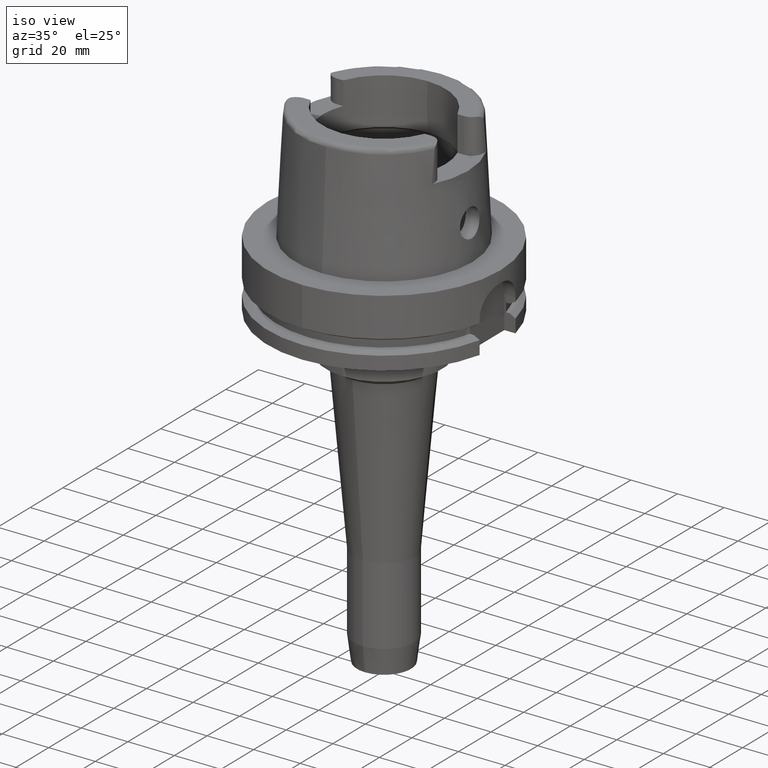
[diagram: clean part render]
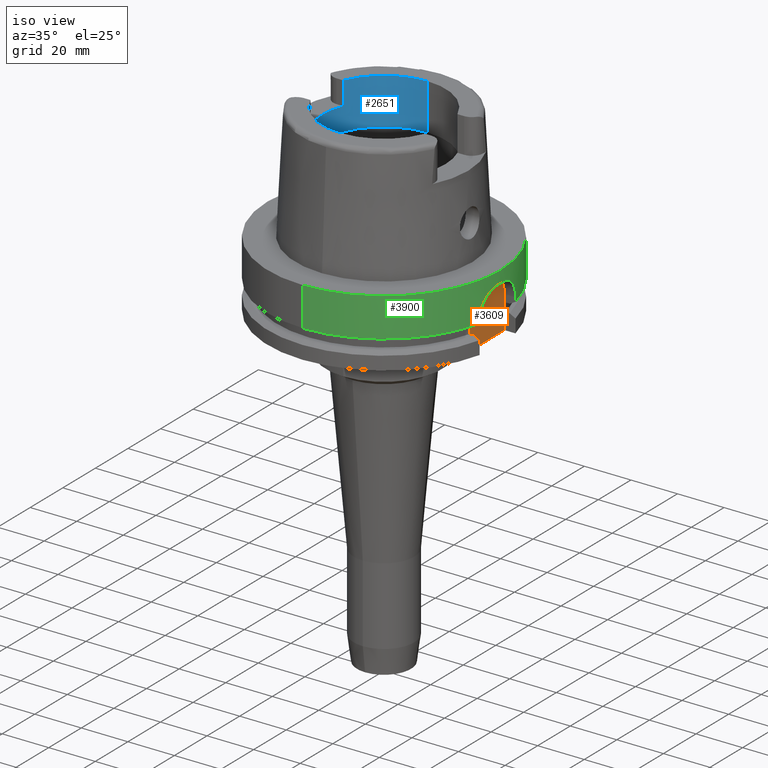
[diagram: same view with three faces highlighted in distinct colors, each labeled with its STEP entity id]
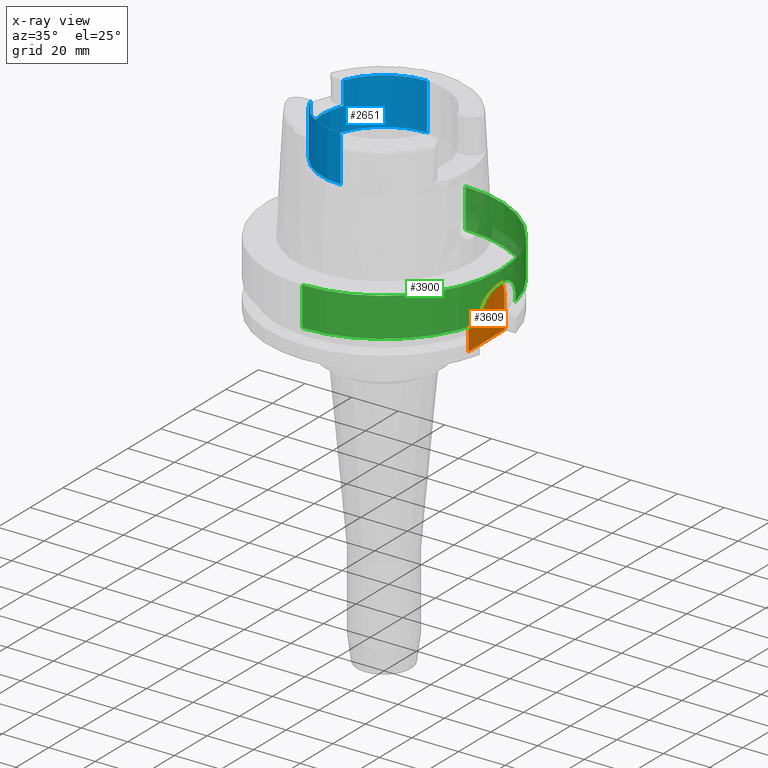
[diagram: x-ray of the same camera — body ghosted, the three highlighted faces saturated]
A machine part, iso view with three faces highlighted in distinct colors.
The next image is the same camera in x-ray (body ghosted, the three faces saturated) — at least one of them is partly hidden behind the body in this view.
Their STEP definitions:

[orange] entity #3609 — the highlighted planar face has unit normal (1, 0, 0).
#1362=DIRECTION('',(0.E0,-1.E0,0.E0));
#1363=VECTOR('',#1362,2.2E1);
#1364=CARTESIAN_POINT('',(4.4E1,1.1E1,-2.9E1));
#1365=LINE('',#1364,#1363);
#1369=DIRECTION('',(0.E0,0.E0,1.E0));
#1370=VECTOR('',#1369,1.4E1);
#1371=CARTESIAN_POINT('',(4.4E1,-1.1E1,-2.9E1));
#1372=LINE('',#1371,#1370);
#1376=CARTESIAN_POINT('',(4.4E1,-1.E0,-1.5E1));
#1377=DIRECTION('',(-1.E0,0.E0,0.E0));
#1378=DIRECTION('',(0.E0,-1.E0,0.E0));
#1379=AXIS2_PLACEMENT_3D('',#1376,#1377,#1378);
#1384=DIRECTION('',(0.E0,1.E0,0.E0));
#1385=VECTOR('',#1384,2.E0);
#1386=CARTESIAN_POINT('',(4.4E1,-1.E0,-5.E0));
#1387=LINE('',#1386,#1385);
#1391=CARTESIAN_POINT('',(4.4E1,1.E0,-1.5E1));
#1392=DIRECTION('',(-1.E0,0.E0,0.E0));
#1393=DIRECTION('',(0.E0,0.E0,1.E0));
#1394=AXIS2_PLACEMENT_3D('',#1391,#1392,#1393);
#1399=DIRECTION('',(0.E0,0.E0,-1.E0));
#1400=VECTOR('',#1399,1.4E1);
#1401=CARTESIAN_POINT('',(4.4E1,1.1E1,-1.5E1));
#1402=LINE('',#1401,#1400);
#2447=CARTESIAN_POINT('',(4.4E1,-1.1E1,-2.9E1));
#2448=VERTEX_POINT('',#2447);
#2449=CARTESIAN_POINT('',(4.4E1,1.1E1,-2.9E1));
#2450=VERTEX_POINT('',#2449);
#2569=CARTESIAN_POINT('',(4.4E1,1.E0,-5.E0));
#2570=VERTEX_POINT('',#2569);
#2571=CARTESIAN_POINT('',(4.4E1,-1.E0,-5.E0));
#2572=VERTEX_POINT('',#2571);
#2573=CARTESIAN_POINT('',(4.4E1,1.1E1,-1.5E1));
#2574=VERTEX_POINT('',#2573);
#2575=CARTESIAN_POINT('',(4.4E1,-1.1E1,-1.5E1));
#2576=VERTEX_POINT('',#2575);
#3592=CARTESIAN_POINT('',(4.4E1,0.E0,0.E0));
#3593=DIRECTION('',(1.E0,0.E0,0.E0));
#3594=DIRECTION('',(0.E0,0.E0,-1.E0));
#3595=AXIS2_PLACEMENT_3D('',#3592,#3593,#3594);
#3596=PLANE('',#3595);
#3597=ORIENTED_EDGE('',*,*,#3507,.T.);
#3599=ORIENTED_EDGE('',*,*,#3598,.T.);
#3601=ORIENTED_EDGE('',*,*,#3600,.T.);
#3603=ORIENTED_EDGE('',*,*,#3602,.T.);
#3605=ORIENTED_EDGE('',*,*,#3604,.T.);
#3606=ORIENTED_EDGE('',*,*,#3572,.T.);
#3607=EDGE_LOOP('',(#3597,#3599,#3601,#3603,#3605,#3606));
#3608=FACE_OUTER_BOUND('',#3607,.F.);
#1380=CIRCLE('',#1379,1.E1);
#1395=CIRCLE('',#1394,1.E1);
#3507=EDGE_CURVE('',#2450,#2448,#1365,.T.);
#3572=EDGE_CURVE('',#2574,#2450,#1402,.T.);
#3598=EDGE_CURVE('',#2448,#2576,#1372,.T.);
#3600=EDGE_CURVE('',#2576,#2572,#1380,.T.);
#3602=EDGE_CURVE('',#2572,#2570,#1387,.T.);
#3604=EDGE_CURVE('',#2570,#2574,#1395,.T.);
#3609=ADVANCED_FACE('',(#3608),#3596,.T.);

[blue] entity #2651 — the highlighted cylindrical surface (partial cylindrical patch) has radius 26.5 mm, axis along (0, 0, 1).
#50=CARTESIAN_POINT('',(0.E0,0.E0,5.E1));
#51=DIRECTION('',(0.E0,0.E0,1.E0));
#52=DIRECTION('',(0.E0,1.E0,0.E0));
#53=AXIS2_PLACEMENT_3D('',#50,#51,#52);
#79=DIRECTION('',(0.E0,0.E0,1.E0));
#80=VECTOR('',#79,1.E1);
#81=CARTESIAN_POINT('',(-2.453670515778E1,1.001E1,4.E1));
#82=LINE('',#81,#80);
#86=DIRECTION('',(0.E0,4.370575506605E-14,1.E0));
#87=VECTOR('',#86,1.999662432703E1);
#88=CARTESIAN_POINT('',(0.E0,-2.65E1,3.000337567297E1));
#89=LINE('',#88,#87);
#93=DIRECTION('',(0.E0,0.E0,-1.E0));
#94=VECTOR('',#93,1.E1);
#95=CARTESIAN_POINT('',(-2.453670515778E1,-1.001E1,5.E1));
#96=LINE('',#95,#94);
#100=CARTESIAN_POINT('',(0.E0,0.E0,4.E1));
#101=DIRECTION('',(0.E0,0.E0,1.E0));
#102=DIRECTION('',(-9.259134021805E-1,3.777358490566E-1,0.E0));
#103=AXIS2_PLACEMENT_3D('',#100,#101,#102);
#175=CARTESIAN_POINT('',(0.E0,0.E0,5.E1));
#176=DIRECTION('',(0.E0,0.E0,1.E0));
#177=DIRECTION('',(-9.259134021805E-1,-3.777358490566E-1,0.E0));
#178=AXIS2_PLACEMENT_3D('',#175,#176,#177);
#486=DIRECTION('',(0.E0,-4.370575506605E-14,1.E0));
#487=VECTOR('',#486,1.999662432703E1);
#488=CARTESIAN_POINT('',(0.E0,2.65E1,3.000337567297E1));
#489=LINE('',#488,#487);
#559=CARTESIAN_POINT('',(0.E0,0.E0,3.000337567297E1));
#560=DIRECTION('',(0.E0,0.E0,-1.E0));
#561=DIRECTION('',(0.E0,-1.E0,0.E0));
#562=AXIS2_PLACEMENT_3D('',#559,#560,#561);
#2259=CARTESIAN_POINT('',(0.E0,2.65E1,5.E1));
#2260=VERTEX_POINT('',#2259);
#2261=CARTESIAN_POINT('',(-2.453670515778E1,1.001E1,5.E1));
#2262=VERTEX_POINT('',#2261);
#2267=CARTESIAN_POINT('',(-2.453670515778E1,-1.001E1,5.E1));
#2268=VERTEX_POINT('',#2267);
#2269=CARTESIAN_POINT('',(0.E0,-2.65E1,5.E1));
#2270=VERTEX_POINT('',#2269);
#2283=CARTESIAN_POINT('',(-2.453670515778E1,1.001E1,4.E1));
#2284=VERTEX_POINT('',#2283);
#2285=CARTESIAN_POINT('',(-2.453670515778E1,-1.001E1,4.E1));
#2286=VERTEX_POINT('',#2285);
#2287=CARTESIAN_POINT('',(0.E0,2.65E1,3.000337567297E1));
#2288=VERTEX_POINT('',#2287);
#2289=CARTESIAN_POINT('',(0.E0,-2.65E1,3.000337567297E1));
#2290=VERTEX_POINT('',#2289);
#2630=CARTESIAN_POINT('',(0.E0,0.E0,-1.7575E2));
#2631=DIRECTION('',(0.E0,0.E0,1.E0));
#2632=DIRECTION('',(0.E0,1.E0,0.E0));
#2633=AXIS2_PLACEMENT_3D('',#2630,#2631,#2632);
#2634=CYLINDRICAL_SURFACE('',#2633,2.65E1);
#2636=ORIENTED_EDGE('',*,*,#2635,.F.);
#2637=ORIENTED_EDGE('',*,*,#2622,.T.);
#2638=ORIENTED_EDGE('',*,*,#2592,.F.);
#2640=ORIENTED_EDGE('',*,*,#2639,.F.);
#2642=ORIENTED_EDGE('',*,*,#2641,.F.);
#2644=ORIENTED_EDGE('',*,*,#2643,.T.);
#2646=ORIENTED_EDGE('',*,*,#2645,.F.);
#2648=ORIENTED_EDGE('',*,*,#2647,.T.);
#2649=EDGE_LOOP('',(#2636,#2637,#2638,#2640,#2642,#2644,#2646,#2648));
#2650=FACE_OUTER_BOUND('',#2649,.F.);
#54=CIRCLE('',#53,2.65E1);
#104=CIRCLE('',#103,2.65E1);
#179=CIRCLE('',#178,2.65E1);
#563=CIRCLE('',#562,2.65E1);
#2592=EDGE_CURVE('',#2260,#2262,#54,.T.);
#2622=EDGE_CURVE('',#2284,#2262,#82,.T.);
#2635=EDGE_CURVE('',#2284,#2286,#104,.T.);
#2639=EDGE_CURVE('',#2288,#2260,#489,.T.);
#2641=EDGE_CURVE('',#2290,#2288,#563,.T.);
#2643=EDGE_CURVE('',#2290,#2270,#89,.T.);
#2645=EDGE_CURVE('',#2268,#2270,#179,.T.);
#2647=EDGE_CURVE('',#2268,#2286,#96,.T.);
#2651=ADVANCED_FACE('',(#2650),#2634,.F.);

[green] entity #3900 — the highlighted cylindrical surface (partial cylindrical patch) has radius 50 mm, axis along (0, 0, 1).
#1537=DIRECTION('',(0.E0,2.969006079282E-14,-1.E0));
#1538=VECTOR('',#1537,1.675240473581E1);
#1539=CARTESIAN_POINT('',(0.E0,-5.E1,0.E0));
#1540=LINE('',#1539,#1538);
#1589=CARTESIAN_POINT('',(4.877499359303E1,1.1E1,-1.675240473581E1));
#1594=CARTESIAN_POINT('',(0.E0,0.E0,-1.675240473581E1));
#1595=DIRECTION('',(0.E0,0.E0,1.E0));
#1596=DIRECTION('',(9.754998718606E-1,2.2E-1,0.E0));
#1597=AXIS2_PLACEMENT_3D('',#1594,#1595,#1596);
#1738=CARTESIAN_POINT('',(4.998999899980E1,-1.E0,-5.E0));
#1739=CARTESIAN_POINT('',(4.997502962949E1,-1.748318806849E0,-5.E0));
#1740=CARTESIAN_POINT('',(4.991282291674E1,-3.210848708994E0,
-5.162603876526E0));
#1741=CARTESIAN_POINT('',(4.972619797368E1,-5.360542516818E0,
-5.905628433817E0));
#1742=CARTESIAN_POINT('',(4.947833699748E1,-7.276984894297E0,
-7.107269275510E0));
#1743=CARTESIAN_POINT('',(4.921223922111E1,-8.879154896471E0,
-8.706220861721E0));
#1744=CARTESIAN_POINT('',(4.897561538632E1,-1.008542517917E1,
-1.061979061039E1));
#1745=CARTESIAN_POINT('',(4.881248014283E1,-1.083588691228E1,
-1.277872227288E1));
#1746=CARTESIAN_POINT('',(4.877499359303E1,-1.1E1,-1.424723863244E1));
#1747=CARTESIAN_POINT('',(4.877499359303E1,-1.1E1,-1.5E1));
#1752=DIRECTION('',(-5.027793947017E-13,6.690209687563E-14,-1.E0));
#1753=VECTOR('',#1752,1.752404735809E0);
#1754=CARTESIAN_POINT('',(4.877499359303E1,-1.1E1,-1.5E1));
#1755=LINE('',#1754,#1753);
#1759=DIRECTION('',(0.E0,-2.969006079282E-14,-1.E0));
#1760=VECTOR('',#1759,1.675240473581E1);
#1761=CARTESIAN_POINT('',(0.E0,5.E1,0.E0));
#1762=LINE('',#1761,#1760);
#1766=DIRECTION('',(4.946700496259E-13,7.095676941355E-14,1.E0));
#1767=VECTOR('',#1766,1.752404735809E0);
#1768=CARTESIAN_POINT('',(4.877499359303E1,1.1E1,-1.675240473581E1));
#1769=LINE('',#1768,#1767);
#1773=CARTESIAN_POINT('',(4.877499359303E1,1.1E1,-1.5E1));
#1774=CARTESIAN_POINT('',(4.877499359303E1,1.1E1,-1.425365513587E1));
#1775=CARTESIAN_POINT('',(4.881185785010E1,1.083857893683E1,-1.279589027066E1));
#1776=CARTESIAN_POINT('',(4.897289371045E1,1.009825143590E1,-1.064845195370E1));
#1777=CARTESIAN_POINT('',(4.920780651826E1,8.903126310452E0,-8.736917024229E0));
#1778=CARTESIAN_POINT('',(4.947350286983E1,7.309291985009E0,-7.133041447326E0));
#1779=CARTESIAN_POINT('',(4.972260453039E1,5.394314866085E0,-5.921156406450E0));
#1780=CARTESIAN_POINT('',(4.991155272931E1,3.234186037465E0,-5.166536640735E0));
#1781=CARTESIAN_POINT('',(4.997484892375E1,1.757352286679E0,-5.E0));
#1782=CARTESIAN_POINT('',(4.998999899980E1,1.E0,-5.E0));
#1787=CARTESIAN_POINT('',(0.E0,0.E0,-5.E0));
#1788=DIRECTION('',(0.E0,0.E0,1.E0));
#1789=DIRECTION('',(9.997999799960E-1,-2.E-2,0.E0));
#1790=AXIS2_PLACEMENT_3D('',#1787,#1788,#1789);
#1841=CARTESIAN_POINT('',(0.E0,0.E0,-1.675240473581E1));
#1842=DIRECTION('',(0.E0,0.E0,1.E0));
#1843=DIRECTION('',(0.E0,-1.E0,0.E0));
#1844=AXIS2_PLACEMENT_3D('',#1841,#1842,#1843);
#1995=CARTESIAN_POINT('',(0.E0,0.E0,0.E0));
#1996=DIRECTION('',(0.E0,0.E0,-1.E0));
#1997=DIRECTION('',(0.E0,1.E0,0.E0));
#1998=AXIS2_PLACEMENT_3D('',#1995,#1996,#1997);
#2548=CARTESIAN_POINT('',(0.E0,-5.E1,-1.675240473581E1));
#2549=VERTEX_POINT('',#2548);
#2550=CARTESIAN_POINT('',(4.877499359303E1,-1.1E1,-1.675240473581E1));
#2551=VERTEX_POINT('',#2550);
#2552=VERTEX_POINT('',#1589);
#2553=CARTESIAN_POINT('',(0.E0,5.E1,-1.675240473581E1));
#2554=VERTEX_POINT('',#2553);
#2556=CARTESIAN_POINT('',(0.E0,5.E1,0.E0));
#2557=VERTEX_POINT('',#2556);
#2558=CARTESIAN_POINT('',(0.E0,-5.E1,0.E0));
#2559=VERTEX_POINT('',#2558);
#2562=CARTESIAN_POINT('',(4.998999899980E1,-1.E0,-5.E0));
#2563=CARTESIAN_POINT('',(4.998999899980E1,1.E0,-5.E0));
#2564=VERTEX_POINT('',#2562);
#2565=VERTEX_POINT('',#2563);
#2566=VERTEX_POINT('',#1747);
#2567=CARTESIAN_POINT('',(4.877499359303E1,1.1E1,-1.5E1));
#2568=VERTEX_POINT('',#2567);
#3878=CARTESIAN_POINT('',(0.E0,0.E0,-1.7575E2));
#3879=DIRECTION('',(0.E0,0.E0,1.E0));
#3880=DIRECTION('',(0.E0,1.E0,0.E0));
#3881=AXIS2_PLACEMENT_3D('',#3878,#3879,#3880);
#3882=CYLINDRICAL_SURFACE('',#3881,5.E1);
#3884=ORIENTED_EDGE('',*,*,#3883,.F.);
#3886=ORIENTED_EDGE('',*,*,#3885,.T.);
#3887=ORIENTED_EDGE('',*,*,#3628,.T.);
#3889=ORIENTED_EDGE('',*,*,#3888,.F.);
#3890=ORIENTED_EDGE('',*,*,#3784,.F.);
#3892=ORIENTED_EDGE('',*,*,#3891,.F.);
#3893=ORIENTED_EDGE('',*,*,#3780,.T.);
#3894=ORIENTED_EDGE('',*,*,#3810,.F.);
#3895=ORIENTED_EDGE('',*,*,#3576,.T.);
#3897=ORIENTED_EDGE('',*,*,#3896,.T.);
#3898=EDGE_LOOP('',(#3884,#3886,#3887,#3889,#3890,#3892,#3893,#3894,#3895,
#3897));
#3899=FACE_OUTER_BOUND('',#3898,.F.);
#1598=CIRCLE('',#1597,5.E1);
#1748=B_SPLINE_CURVE_WITH_KNOTS('',3,(#1738,#1739,#1740,#1741,#1742,#1743,#1744,
#1745,#1746,#1747),.UNSPECIFIED.,.F.,.F.,(4,1,1,1,1,1,1,4),(0.E0,
1.428571428571E-1,2.857142857143E-1,4.285714285714E-1,5.714285714286E-1,
7.142857142857E-1,8.571428571429E-1,1.E0),.UNSPECIFIED.);
#1783=B_SPLINE_CURVE_WITH_KNOTS('',3,(#1773,#1774,#1775,#1776,#1777,#1778,#1779,
#1780,#1781,#1782),.UNSPECIFIED.,.F.,.F.,(4,1,1,1,1,1,1,4),(0.E0,
1.428571428571E-1,2.857142857143E-1,4.285714285714E-1,5.714285714286E-1,
7.142857142857E-1,8.571428571429E-1,1.E0),.UNSPECIFIED.);
#1791=CIRCLE('',#1790,5.E1);
#1845=CIRCLE('',#1844,5.E1);
#1999=CIRCLE('',#1998,5.E1);
#3576=EDGE_CURVE('',#2552,#2568,#1769,.T.);
#3628=EDGE_CURVE('',#2566,#2551,#1755,.T.);
#3780=EDGE_CURVE('',#2557,#2554,#1762,.T.);
#3784=EDGE_CURVE('',#2559,#2549,#1540,.T.);
#3810=EDGE_CURVE('',#2552,#2554,#1598,.T.);
#3883=EDGE_CURVE('',#2564,#2565,#1791,.T.);
#3885=EDGE_CURVE('',#2564,#2566,#1748,.T.);
#3888=EDGE_CURVE('',#2549,#2551,#1845,.T.);
#3891=EDGE_CURVE('',#2557,#2559,#1999,.T.);
#3896=EDGE_CURVE('',#2568,#2565,#1783,.T.);
#3900=ADVANCED_FACE('',(#3899),#3882,.T.);